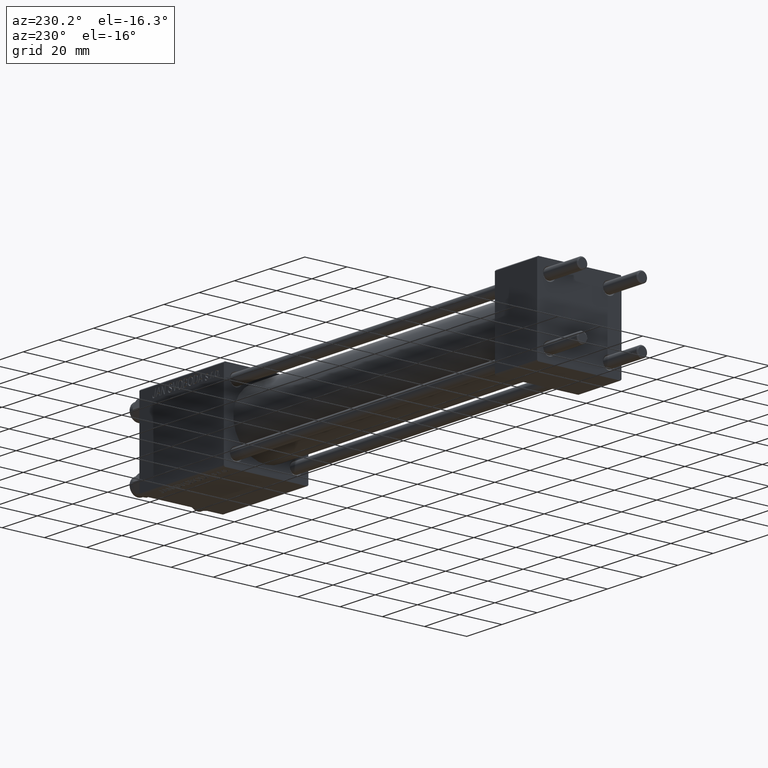
[diagram: clean part render]
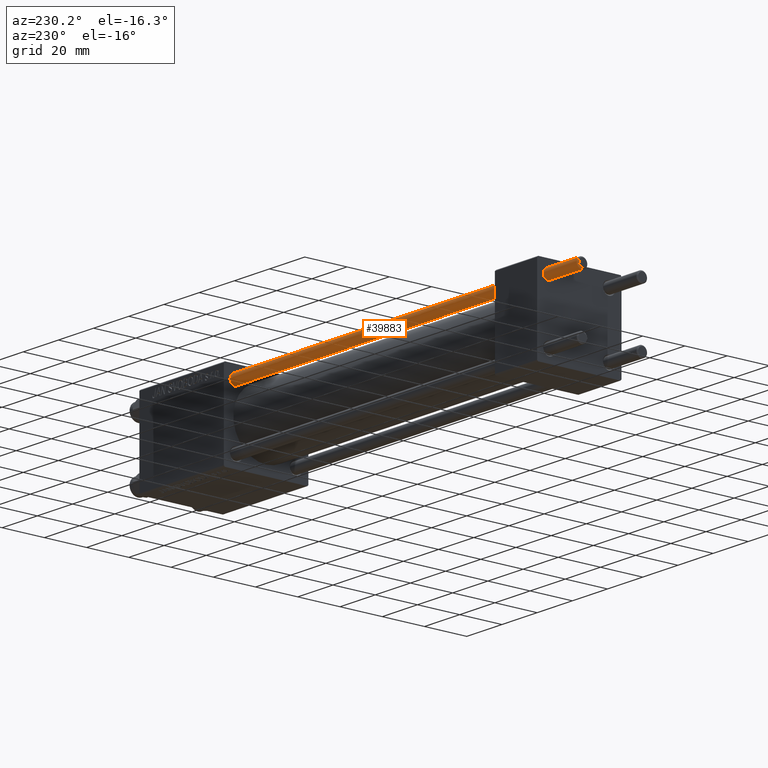
[diagram: same view with one face highlighted and labeled with its STEP entity id]
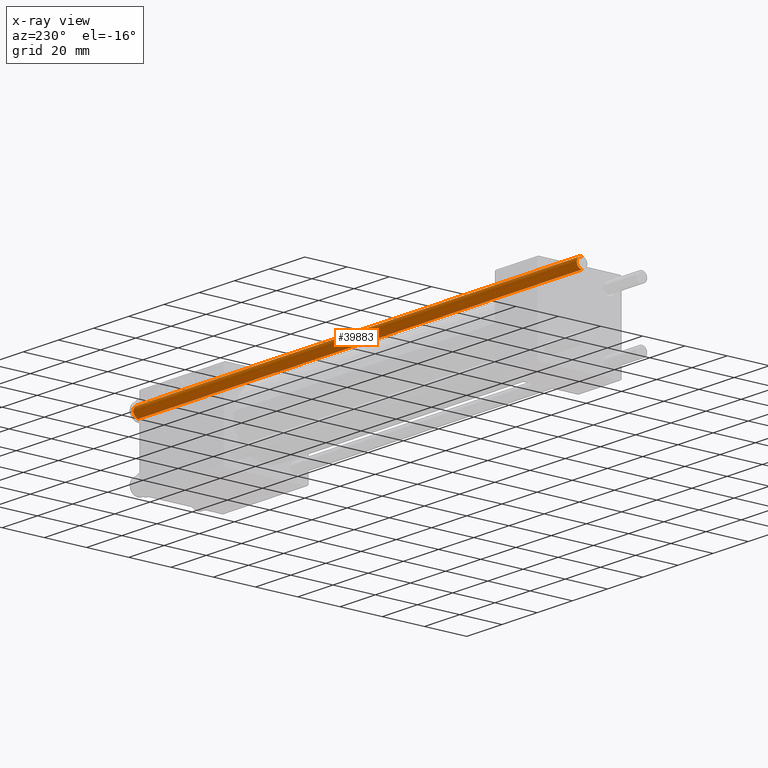
[diagram: x-ray of the same camera — body ghosted, the highlighted face saturated]
A machine part, auxiliary view. The second image highlights one B-rep face of the part: STEP entity #39883.
The next image is the same camera in x-ray: the body ghosted, the highlighted face saturated — about 0% of this face is hidden behind the body in this view.
In plain terms, the highlighted cylindrical surface (edge-blend (fillet) strip) has radius 2.5 mm, axis along (-1, -0, -0).
Its self-contained STEP definition (entity closure, byte-faithful):
#1007 = ORIENTED_EDGE ( 'NONE', *, *, #21465, .T. ) ;
#1055 = CARTESIAN_POINT ( 'NONE',  ( 0.000000000000000000, 0.000000000000000000, 252.5000000000000000 ) ) ;
#1276 = CYLINDRICAL_SURFACE ( 'NONE', #42220, 2.500000000000000000 ) ;
#4453 = EDGE_LOOP ( 'NONE', ( #7452, #28112, #1007, #22247 ) ) ;
#5793 = DIRECTION ( 'NONE',  ( -0.000000000000000000, -0.000000000000000000, -1.000000000000000000 ) ) ;
#6770 = DIRECTION ( 'NONE',  ( -0.000000000000000000, -0.000000000000000000, -1.000000000000000000 ) ) ;
#7452 = ORIENTED_EDGE ( 'NONE', *, *, #38114, .T. ) ;
#9875 = VECTOR ( 'NONE', #6770, 1000.000000000000000 ) ;
#11337 = LINE ( 'NONE', #45157, #9875 ) ;
#11518 = AXIS2_PLACEMENT_3D ( 'NONE', #1055, #15722, #31367 ) ;
#12948 = EDGE_CURVE ( 'NONE', #46323, #38760, #11337, .T. ) ;
#13386 = FACE_OUTER_BOUND ( 'NONE', #4453, .T. ) ;
#15224 = LINE ( 'NONE', #18739, #46522 ) ;
#15722 = DIRECTION ( 'NONE',  ( 0.000000000000000000, 0.000000000000000000, -1.000000000000000000 ) ) ;
#16828 = CARTESIAN_POINT ( 'NONE',  ( -2.500000000000000000, 0.000000000000000000, 252.5000000000000000 ) ) ;
#18080 = AXIS2_PLACEMENT_3D ( 'NONE', #49544, #49289, #34375 ) ;
#18739 = CARTESIAN_POINT ( 'NONE',  ( -2.500000000000000000, 0.000000000000000000, 253.0000000000000000 ) ) ;
#21465 = EDGE_CURVE ( 'NONE', #38760, #48247, #35006, .T. ) ;
#22247 = ORIENTED_EDGE ( 'NONE', *, *, #47892, .F. ) ;
#24247 = DIRECTION ( 'NONE',  ( -1.000000000000000000, 0.000000000000000000, 0.000000000000000000 ) ) ;
#24550 = CARTESIAN_POINT ( 'NONE',  ( 2.500000000000000000, 3.061616997868383141E-16, 0.5000000000000559552 ) ) ;
#28112 = ORIENTED_EDGE ( 'NONE', *, *, #12948, .T. ) ;
#28259 = CARTESIAN_POINT ( 'NONE',  ( -2.500000000000000000, 0.000000000000000000, 0.5000000000000559552 ) ) ;
#28433 = CIRCLE ( 'NONE', #11518, 2.500000000000000000 ) ;
#31367 = DIRECTION ( 'NONE',  ( 1.000000000000000000, 0.000000000000000000, 0.000000000000000000 ) ) ;
#34375 = DIRECTION ( 'NONE',  ( 1.000000000000000000, 0.000000000000000000, 0.000000000000000000 ) ) ;
#34665 = CARTESIAN_POINT ( 'NONE',  ( 2.500000000000000000, 3.061616997868383141E-16, 252.5000000000000000 ) ) ;
#35006 = CIRCLE ( 'NONE', #18080, 2.500000000000000000 ) ;
#38114 = EDGE_CURVE ( 'NONE', #42934, #46323, #28433, .T. ) ;
#38760 = VERTEX_POINT ( 'NONE', #24550 ) ;
#39883 = ADVANCED_FACE ( 'NONE', ( #13386 ), #1276, .T. ) ;
#41986 = DIRECTION ( 'NONE',  ( -0.000000000000000000, -0.000000000000000000, -1.000000000000000000 ) ) ;
#42220 = AXIS2_PLACEMENT_3D ( 'NONE', #44179, #5793, #24247 ) ;
#42934 = VERTEX_POINT ( 'NONE', #16828 ) ;
#44179 = CARTESIAN_POINT ( 'NONE',  ( 0.000000000000000000, 0.000000000000000000, 253.0000000000000000 ) ) ;
#45157 = CARTESIAN_POINT ( 'NONE',  ( 2.500000000000000000, 3.061616997868383141E-16, 253.0000000000000000 ) ) ;
#46323 = VERTEX_POINT ( 'NONE', #34665 ) ;
#46522 = VECTOR ( 'NONE', #41986, 1000.000000000000000 ) ;
#47892 = EDGE_CURVE ( 'NONE', #42934, #48247, #15224, .T. ) ;
#48247 = VERTEX_POINT ( 'NONE', #28259 ) ;
#49289 = DIRECTION ( 'NONE',  ( -0.000000000000000000, -0.000000000000000000, 1.000000000000000000 ) ) ;
#49544 = CARTESIAN_POINT ( 'NONE',  ( 0.000000000000000000, 0.000000000000000000, 0.5000000000000559552 ) ) ;